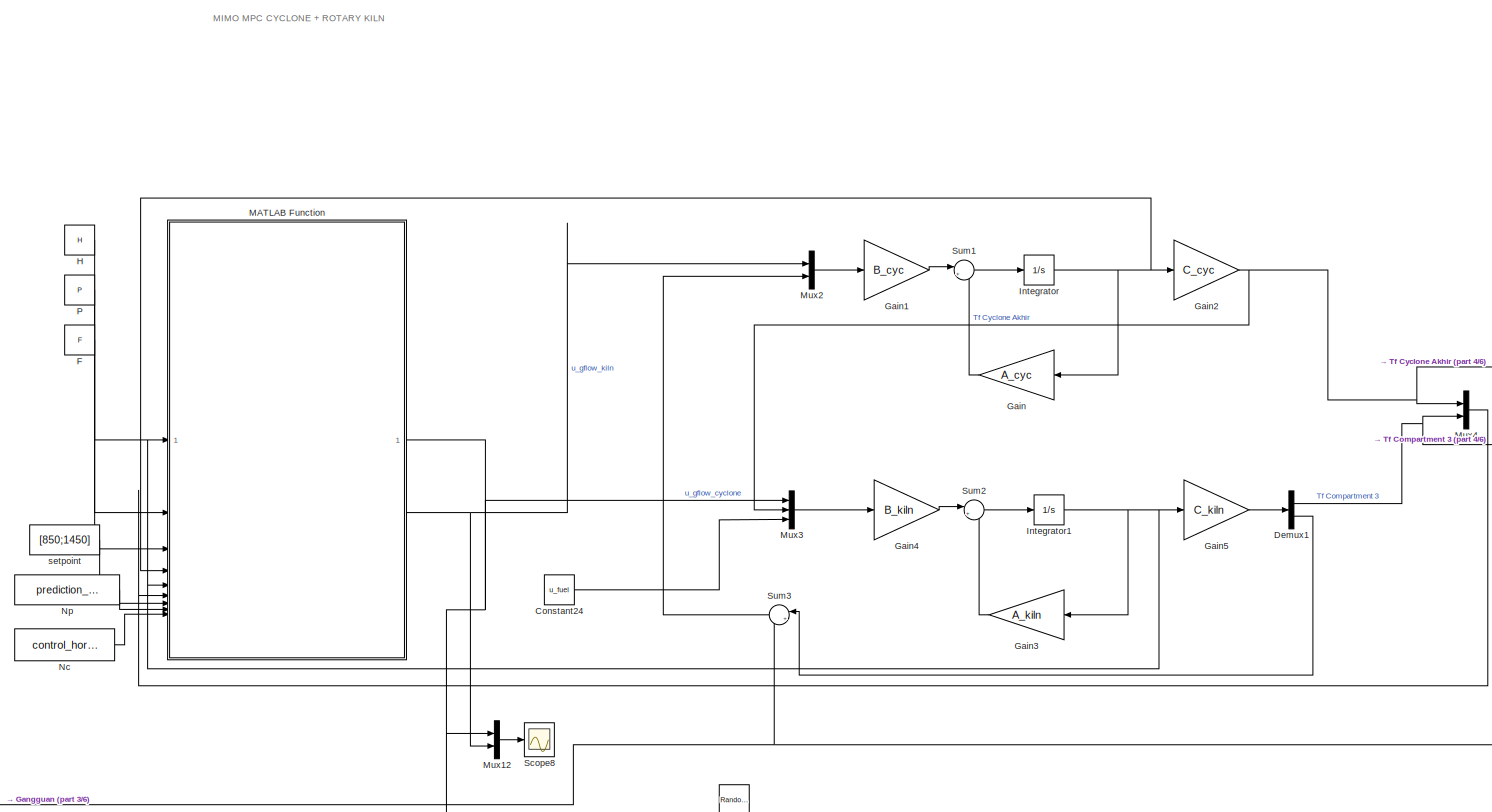
[diagram: root canvas - part 1/6, top right region]
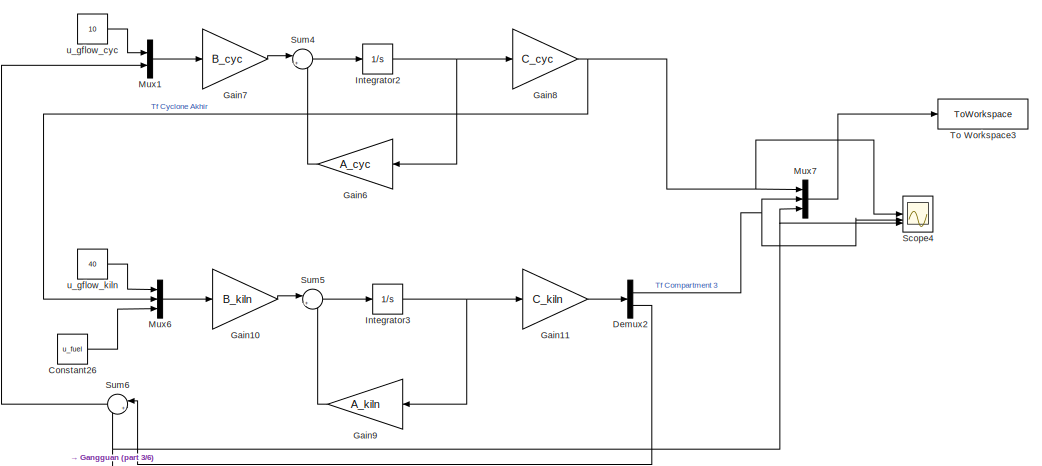
[diagram: root canvas - part 2/6, top left region]
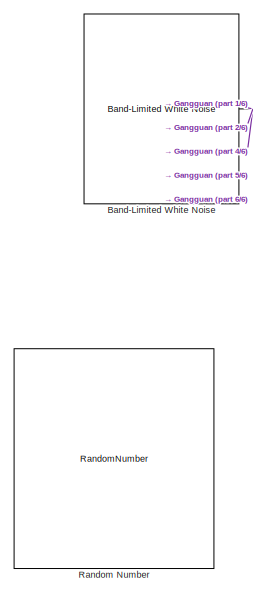
[diagram: root canvas - part 3/6, middle left region]
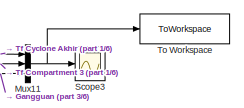
[diagram: root canvas - part 4/6, top right region]
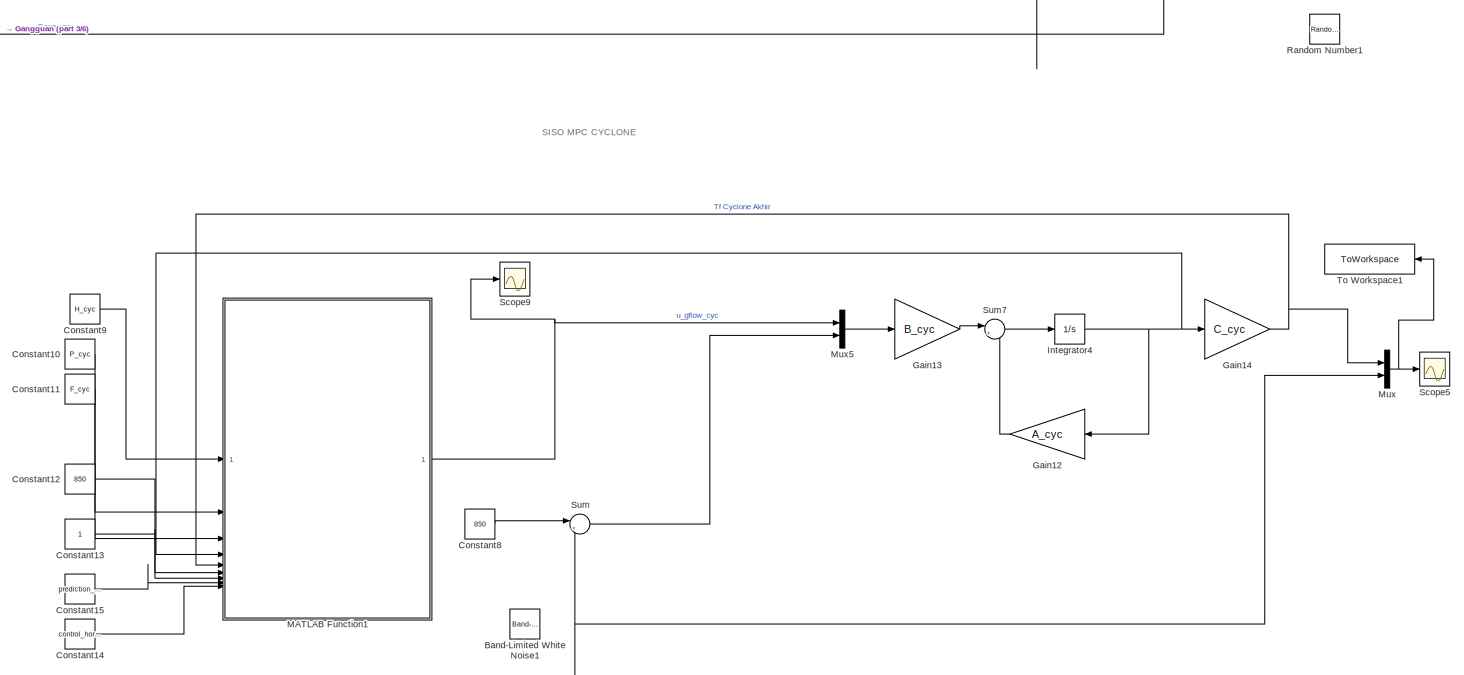
[diagram: root canvas - part 5/6, bottom center region]
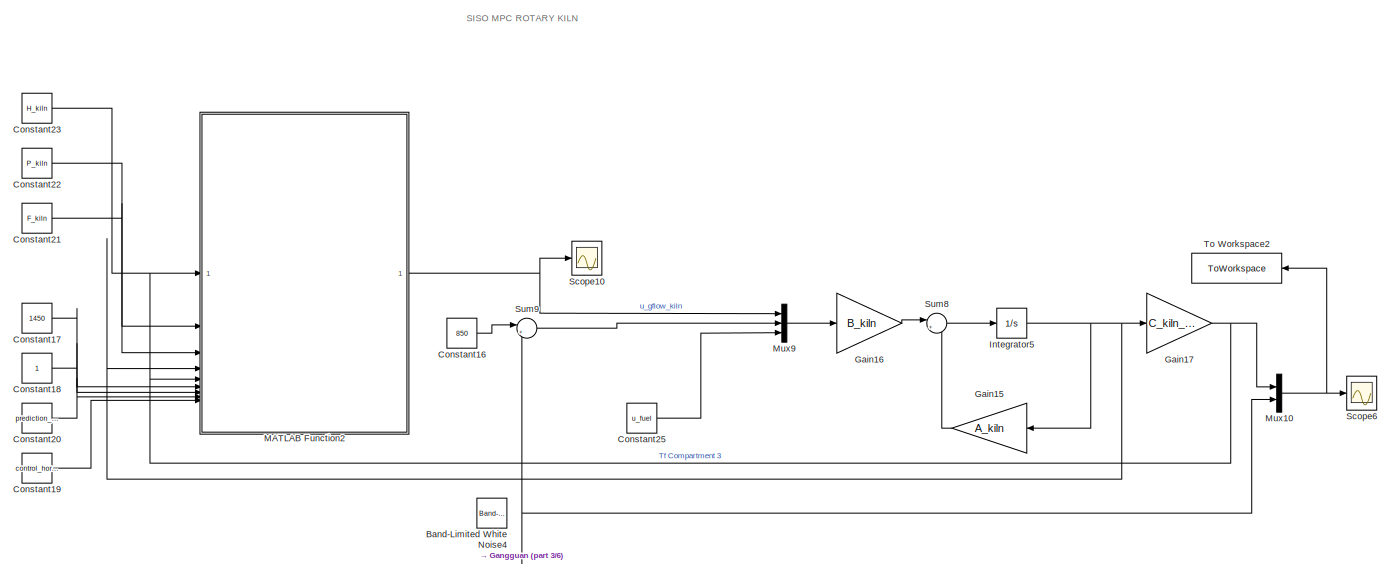
[diagram: root canvas - part 6/6, bottom right region]
MODEL slx_e0a44aeaa0a1
KIND model
CONFIG AbsTol = auto
CONFIG EnableMultiTasking = off
CONFIG FixedStep = auto
CONFIG MaxStep = auto
CONFIG MinStep = auto
CONFIG RelTol = 1e-3
CONFIG SampleTimeConstraint = Unconstrained
CONFIG SolverName = VariableStepAuto
CONFIG StartTime = 0.0
CONFIG StopTime = 1/24
BLOCK [Reference] Band-Limited White Noise  REF=simulink/Sources/Band-Limited
White Noise
  SourceBlock = simulink/Sources/Band-Limited\nWhite Noise
  SourceType = Band-Limited White Noise.
BLOCK [Reference] Band-Limited White Noise1  REF=simulink/Sources/Band-Limited
White Noise
  SourceBlock = simulink/Sources/Band-Limited\nWhite Noise
  SourceType = Band-Limited White Noise.
BLOCK [Reference] Band-Limited White Noise4  REF=simulink/Sources/Band-Limited
White Noise
  SourceBlock = simulink/Sources/Band-Limited\nWhite Noise
  SourceType = Band-Limited White Noise.
BLOCK [Constant] Constant10
  Value = P_cyc
BLOCK [Constant] Constant11
  Value = F_cyc
BLOCK [Constant] Constant12
  Value = 850
BLOCK [Constant] Constant13
BLOCK [Constant] Constant14
  Value = control_horizon
BLOCK [Constant] Constant15
  Value = prediction_horizon
BLOCK [Constant] Constant16
  Value = 850
BLOCK [Constant] Constant17
  Value = 1450
BLOCK [Constant] Constant18
BLOCK [Constant] Constant19
  Value = control_horizon
BLOCK [Constant] Constant20
  Value = prediction_horizon
BLOCK [Constant] Constant21
  Value = F_kiln
BLOCK [Constant] Constant22
  Value = P_kiln
BLOCK [Constant] Constant23
  Value = H_kiln
BLOCK [Constant] Constant24
  Value = u_fuel
BLOCK [Constant] Constant25
  Value = u_fuel
BLOCK [Constant] Constant26
  Value = u_fuel
BLOCK [Constant] Constant8
  Value = 850
BLOCK [Constant] Constant9
  Value = H_cyc
BLOCK [Demux] Demux1
  Outputs = 2
BLOCK [Demux] Demux2
  Outputs = 2
BLOCK [Constant] F
  Value = F
BLOCK [Gain] Gain
  Gain = A_cyc
  Multiplication = Matrix(K*u)
BLOCK [Gain] Gain1
  Gain = B_cyc
  Multiplication = Matrix(K*u)
BLOCK [Gain] Gain10
  Gain = B_kiln
  Multiplication = Matrix(K*u)
BLOCK [Gain] Gain11
  Gain = C_kiln
  Multiplication = Matrix(K*u)
BLOCK [Gain] Gain12
  Gain = A_cyc
  Multiplication = Matrix(K*u)
BLOCK [Gain] Gain13
  Gain = B_cyc
  Multiplication = Matrix(K*u)
BLOCK [Gain] Gain14
  Gain = C_cyc
  Multiplication = Matrix(K*u)
BLOCK [Gain] Gain15
  Gain = A_kiln
  Multiplication = Matrix(K*u)
BLOCK [Gain] Gain16
  Gain = B_kiln
  Multiplication = Matrix(K*u)
BLOCK [Gain] Gain17
  Gain = C_kiln_mpc
  Multiplication = Matrix(K*u)
BLOCK [Gain] Gain2
  Gain = C_cyc
  Multiplication = Matrix(K*u)
BLOCK [Gain] Gain3
  Gain = A_kiln
  Multiplication = Matrix(K*u)
BLOCK [Gain] Gain4
  Gain = B_kiln
  Multiplication = Matrix(K*u)
BLOCK [Gain] Gain5
  Gain = C_kiln
  Multiplication = Matrix(K*u)
BLOCK [Gain] Gain6
  Gain = A_cyc
  Multiplication = Matrix(K*u)
BLOCK [Gain] Gain7
  Gain = B_cyc
  Multiplication = Matrix(K*u)
BLOCK [Gain] Gain8
  Gain = C_cyc
  Multiplication = Matrix(K*u)
BLOCK [Gain] Gain9
  Gain = A_kiln
  Multiplication = Matrix(K*u)
BLOCK [Constant] H
  Value = H
BLOCK [Integrator] Integrator
BLOCK [Integrator] Integrator1
BLOCK [Integrator] Integrator2
BLOCK [Integrator] Integrator3
BLOCK [Integrator] Integrator4
BLOCK [Integrator] Integrator5
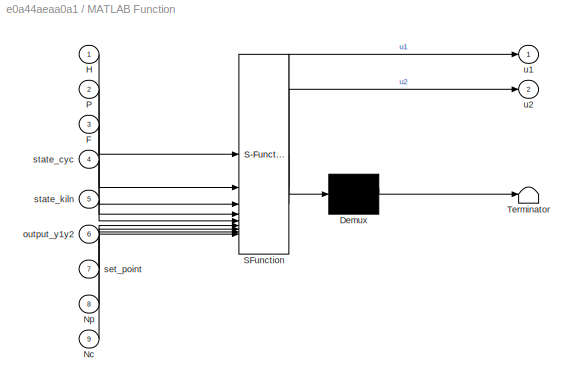
BLOCK [SubSystem] MATLAB Function
  ErrorFcn = Stateflow.Translate.translate
  LibrarySourceBlock = simulink/User-Defined\nFunctions/MATLAB Function
  PermitHierarchicalResolution = ExplicitOnly
  SFBlockType = MATLAB Function
  TreatAsAtomicUnit = on
BLOCK [Demux] MATLAB Function/ Demux 
  Outputs = 1
BLOCK [S-Function] MATLAB Function/ SFunction 
  EnableBusSupport = on
  FunctionName = sf_sfun
  PortCounts = [9 3]
  SFcnIsStateOwnerBlock = off
  SFunctionDeploymentMode = off
  Tag = Stateflow S-Function 2
BLOCK [Terminator] MATLAB Function/ Terminator 
BLOCK [Inport] MATLAB Function/F
  Port = 3
BLOCK [Inport] MATLAB Function/H
BLOCK [Inport] MATLAB Function/Nc
  Port = 9
BLOCK [Inport] MATLAB Function/Np
  Port = 8
BLOCK [Inport] MATLAB Function/P
  Port = 2
BLOCK [Inport] MATLAB Function/output_y1y2
  Port = 6
BLOCK [Inport] MATLAB Function/set_point
  Port = 7
BLOCK [Inport] MATLAB Function/state_cyc
  Port = 4
BLOCK [Inport] MATLAB Function/state_kiln
  Port = 5
BLOCK [Outport] MATLAB Function/u1
BLOCK [Outport] MATLAB Function/u2
  Port = 2
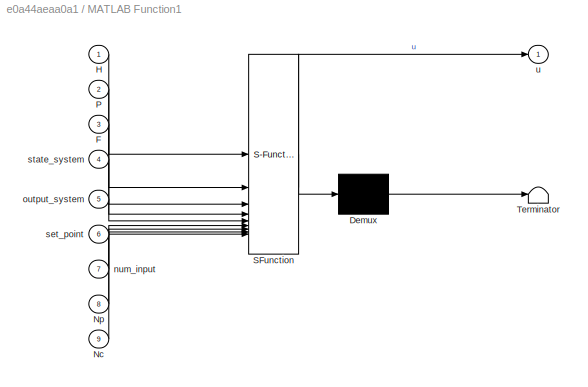
BLOCK [SubSystem] MATLAB Function1
  ErrorFcn = Stateflow.Translate.translate
  LibrarySourceBlock = simulink/User-Defined\nFunctions/MATLAB Function
  PermitHierarchicalResolution = ExplicitOnly
  SFBlockType = MATLAB Function
  TreatAsAtomicUnit = on
BLOCK [Demux] MATLAB Function1/ Demux 
  Outputs = 1
BLOCK [S-Function] MATLAB Function1/ SFunction 
  EnableBusSupport = on
  FunctionName = sf_sfun
  PortCounts = [9 2]
  SFcnIsStateOwnerBlock = off
  SFunctionDeploymentMode = off
  Tag = Stateflow S-Function 1
BLOCK [Terminator] MATLAB Function1/ Terminator 
BLOCK [Inport] MATLAB Function1/F
  Port = 3
BLOCK [Inport] MATLAB Function1/H
BLOCK [Inport] MATLAB Function1/Nc
  Port = 9
BLOCK [Inport] MATLAB Function1/Np
  Port = 8
BLOCK [Inport] MATLAB Function1/P
  Port = 2
BLOCK [Inport] MATLAB Function1/num_input
  Port = 7
BLOCK [Inport] MATLAB Function1/output_system
  Port = 5
BLOCK [Inport] MATLAB Function1/set_point
  Port = 6
BLOCK [Inport] MATLAB Function1/state_system
  Port = 4
BLOCK [Outport] MATLAB Function1/u
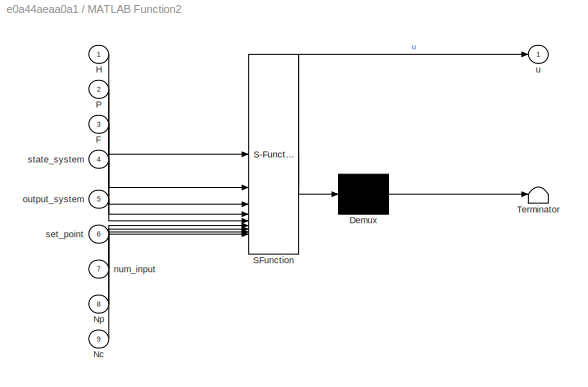
BLOCK [SubSystem] MATLAB Function2
  ErrorFcn = Stateflow.Translate.translate
  LibrarySourceBlock = simulink/User-Defined\nFunctions/MATLAB Function
  PermitHierarchicalResolution = ExplicitOnly
  SFBlockType = MATLAB Function
  TreatAsAtomicUnit = on
BLOCK [Demux] MATLAB Function2/ Demux 
  Outputs = 1
BLOCK [S-Function] MATLAB Function2/ SFunction 
  EnableBusSupport = on
  FunctionName = sf_sfun
  PortCounts = [9 2]
  SFcnIsStateOwnerBlock = off
  SFunctionDeploymentMode = off
  Tag = Stateflow S-Function 3
BLOCK [Terminator] MATLAB Function2/ Terminator 
BLOCK [Inport] MATLAB Function2/F
  Port = 3
BLOCK [Inport] MATLAB Function2/H
BLOCK [Inport] MATLAB Function2/Nc
  Port = 9
BLOCK [Inport] MATLAB Function2/Np
  Port = 8
BLOCK [Inport] MATLAB Function2/P
  Port = 2
BLOCK [Inport] MATLAB Function2/num_input
  Port = 7
BLOCK [Inport] MATLAB Function2/output_system
  Port = 5
BLOCK [Inport] MATLAB Function2/set_point
  Port = 6
BLOCK [Inport] MATLAB Function2/state_system
  Port = 4
BLOCK [Outport] MATLAB Function2/u
BLOCK [Mux] Mux
  DisplayOption = bar
  Inputs = 2
BLOCK [Mux] Mux1
  DisplayOption = bar
  Inputs = 2
BLOCK [Mux] Mux10
  DisplayOption = bar
  Inputs = 2
BLOCK [Mux] Mux11
  DisplayOption = bar
  Inputs = 3
BLOCK [Mux] Mux12
  DisplayOption = bar
  Inputs = 2
BLOCK [Mux] Mux2
  DisplayOption = bar
  Inputs = 2
BLOCK [Mux] Mux3
  DisplayOption = bar
  Inputs = 3
BLOCK [Mux] Mux4
  DisplayOption = bar
  Inputs = 2
BLOCK [Mux] Mux5
  DisplayOption = bar
  Inputs = 2
BLOCK [Mux] Mux6
  DisplayOption = bar
  Inputs = 3
BLOCK [Mux] Mux7
  DisplayOption = bar
  Inputs = 3
BLOCK [Mux] Mux9
  DisplayOption = bar
  Inputs = 3
BLOCK [Constant] Nc
  Value = control_horizon
BLOCK [Constant] Np
  Value = prediction_horizon
BLOCK [Constant] P
  Value = P
BLOCK [RandomNumber] Random Number
  SampleTime = 0.001
  Variance = 10000
BLOCK [RandomNumber] Random Number1
  SampleTime = 0.001
  Variance = 500
BLOCK [Scope] Scope10
  Floating = off
  NumInputPorts = 1
  ScopeSpecificationString = Simulink.scopes.TimeScopeBlockCfg('CurrentConfiguration', extmgr.ConfigurationSet(extmgr.Configuration('Core','General UI',true,'FigureColor',[1 1 1]),extmgr.Configuration('Core','Source UI',true),extmgr.Configuration('Sources','WiredSimulink',true,'DataLoggingVariableName','ScopeData4'),extmgr.Configuration('Visuals','Time Domain',true,'SerializedDisplays',{struct('MinYLimReal','-4911.78672','Max...<+1842ch>
BLOCK [Scope] Scope3
  Floating = off
  NumInputPorts = 1
  ScopeSpecificationString = Simulink.scopes.TimeScopeBlockCfg('CurrentConfiguration', extmgr.ConfigurationSet(extmgr.Configuration('Core','General UI',true,'FigureColor',[1 1 1]),extmgr.Configuration('Core','Source UI',true),extmgr.Configuration('Sources','WiredSimulink',true,'DataLoggingVariableName','ScopeData1'),extmgr.Configuration('Visuals','Time Domain',true,'SerializedDisplays',{struct('MinYLimReal','-2034.29056','Max...<+1880ch>
BLOCK [Scope] Scope4
  Floating = off
  NumInputPorts = 3
  ScopeSpecificationString = Simulink.scopes.TimeScopeBlockCfg('CurrentConfiguration', extmgr.ConfigurationSet(extmgr.Configuration('Core','General UI',true,'FigureColor',[1 1 1]),extmgr.Configuration('Core','Source UI',true),extmgr.Configuration('Sources','WiredSimulink',true,'DataLoggingVariableName','ScopeData2'),extmgr.Configuration('Visuals','Time Domain',true,'SerializedDisplays',{struct('MinYLimReal','-2876.92131','Max...<+1878ch>
BLOCK [Scope] Scope5
  Floating = off
  NumInputPorts = 1
  ScopeSpecificationString = Simulink.scopes.TimeScopeBlockCfg('CurrentConfiguration', extmgr.ConfigurationSet(extmgr.Configuration('Core','General UI',true,'FigureColor',[1 1 1]),extmgr.Configuration('Core','Source UI',true),extmgr.Configuration('Sources','WiredSimulink',true,'DataLoggingVariableName','ScopeData1'),extmgr.Configuration('Visuals','Time Domain',true,'SerializedDisplays',{struct('MinYLimReal','0.00000','MaxYLim...<+1850ch>
BLOCK [Scope] Scope6
  Floating = off
  NumInputPorts = 1
  ScopeSpecificationString = Simulink.scopes.TimeScopeBlockCfg('CurrentConfiguration', extmgr.ConfigurationSet(extmgr.Configuration('Core','General UI',true,'FigureColor',[1 1 1]),extmgr.Configuration('Core','Source UI',true),extmgr.Configuration('Sources','WiredSimulink',true,'DataLoggingVariableName','ScopeData2'),extmgr.Configuration('Visuals','Time Domain',true,'SerializedDisplays',{struct('MinYLimReal','-172.70281','MaxY...<+1829ch>
BLOCK [Scope] Scope8
  Floating = off
  NumInputPorts = 1
  ScopeSpecificationString = Simulink.scopes.TimeScopeBlockCfg('CurrentConfiguration', extmgr.ConfigurationSet(extmgr.Configuration('Core','General UI',true,'FigureColor',[1 1 1]),extmgr.Configuration('Core','Source UI',true),extmgr.Configuration('Sources','WiredSimulink',true,'DataLoggingVariableName','ScopeData2'),extmgr.Configuration('Visuals','Time Domain',true,'SerializedDisplays',{struct('MinYLimReal','-1941.06374','Max...<+1838ch>
BLOCK [Scope] Scope9
  Floating = off
  NumInputPorts = 1
  ScopeSpecificationString = Simulink.scopes.TimeScopeBlockCfg('CurrentConfiguration', extmgr.ConfigurationSet(extmgr.Configuration('Core','General UI',true,'FigureColor',[1 1 1]),extmgr.Configuration('Core','Source UI',true),extmgr.Configuration('Sources','WiredSimulink',true,'DataLoggingVariableName','ScopeData3'),extmgr.Configuration('Visuals','Time Domain',true,'SerializedDisplays',{struct('MinYLimReal','-2504.50148','Max...<+1842ch>
BLOCK [Sum] Sum
  Inputs = |++
BLOCK [Sum] Sum1
  Inputs = |++
BLOCK [Sum] Sum2
  Inputs = |++
BLOCK [Sum] Sum3
  Inputs = |++
BLOCK [Sum] Sum4
  Inputs = |++
BLOCK [Sum] Sum5
  Inputs = |++
BLOCK [Sum] Sum6
  Inputs = |++
BLOCK [Sum] Sum7
  Inputs = |++
BLOCK [Sum] Sum8
  Inputs = |++
BLOCK [Sum] Sum9
  Inputs = |++
BLOCK [ToWorkspace] To Workspace
  FixptAsFi = on
  MaxDataPoints = inf
  SampleTime = -1
  SaveFormat = Timeseries
  VariableName = state
BLOCK [ToWorkspace] To Workspace1
  FixptAsFi = on
  MaxDataPoints = inf
  SampleTime = -1
  SaveFormat = Timeseries
  VariableName = cyclone
BLOCK [ToWorkspace] To Workspace2
  FixptAsFi = on
  MaxDataPoints = inf
  SampleTime = -1
  SaveFormat = Timeseries
  VariableName = rotarykiln
BLOCK [ToWorkspace] To Workspace3
  FixptAsFi = on
  MaxDataPoints = inf
  SampleTime = -1
  SaveFormat = Timeseries
  VariableName = simulation
BLOCK [Constant] setpoint
  Value = [850;1450]
BLOCK [Constant] u_gflow_cyc
  Value = 10
BLOCK [Constant] u_gflow_kiln
  Value = 40
ANNOTATION (root): SISO MPC CYCLONE
ANNOTATION (root): SISO MPC ROTARY KILN
ANNOTATION (root): MIMO MPC CYCLONE + ROTARY KILN
NET Band-Limited White Noise:1 -> Mux10:2, Mux11:3, Mux7:3, Mux:2, Scope4:3, Sum3:2, Sum6:2, Sum9:2, Sum:2
LINE Constant10:1 -> MATLAB Function1:2
LINE Constant11:1 -> MATLAB Function1:3
LINE Constant12:1 -> MATLAB Function1:6
LINE Constant13:1 -> MATLAB Function1:7
LINE Constant14:1 -> MATLAB Function1:9
LINE Constant15:1 -> MATLAB Function1:8
LINE Constant16:1 -> Sum9:1
LINE Constant17:1 -> MATLAB Function2:6
LINE Constant18:1 -> MATLAB Function2:7
LINE Constant19:1 -> MATLAB Function2:9
LINE Constant20:1 -> MATLAB Function2:8
LINE Constant21:1 -> MATLAB Function2:3
LINE Constant22:1 -> MATLAB Function2:2
LINE Constant23:1 -> MATLAB Function2:1
LINE Constant24:1 -> Mux3:3
LINE Constant25:1 -> Mux9:3
LINE Constant26:1 -> Mux6:3
LINE Constant8:1 -> Sum:1
LINE Constant9:1 -> MATLAB Function1:1
NET Demux1:1 -> Mux11:2, Mux4:2
LINE Demux1:2 -> Sum3:1
NET Demux2:1 -> Mux7:2, Scope4:2
LINE Demux2:2 -> Sum6:1
LINE F:1 -> MATLAB Function:3
LINE Gain10:1 -> Sum5:1
LINE Gain11:1 -> Demux2:1
LINE Gain12:1 -> Sum7:2
LINE Gain13:1 -> Sum7:1
NET Gain14:1 -> MATLAB Function1:5, Mux:1
LINE Gain15:1 -> Sum8:2
LINE Gain16:1 -> Sum8:1
NET Gain17:1 -> MATLAB Function2:5, Mux10:1
LINE Gain1:1 -> Sum1:1
NET Gain2:1 -> Mux11:1, Mux3:2, Mux4:1
LINE Gain3:1 -> Sum2:2
LINE Gain4:1 -> Sum2:1
LINE Gain5:1 -> Demux1:1
LINE Gain6:1 -> Sum4:2
LINE Gain7:1 -> Sum4:1
NET Gain8:1 -> Mux6:2, Mux7:1, Scope4:1
LINE Gain9:1 -> Sum5:2
LINE Gain:1 -> Sum1:2
LINE H:1 -> MATLAB Function:1
NET Integrator1:1 -> Gain3:1, Gain5:1, MATLAB Function:5
NET Integrator2:1 -> Gain6:1, Gain8:1
NET Integrator3:1 -> Gain11:1, Gain9:1
NET Integrator4:1 -> Gain12:1, Gain14:1, MATLAB Function1:4
NET Integrator5:1 -> Gain15:1, Gain17:1, MATLAB Function2:4
NET Integrator:1 -> Gain2:1, Gain:1, MATLAB Function:4
NET MATLAB Function1:1 -> Mux5:1, Scope9:1
NET MATLAB Function2:1 -> Mux9:1, Scope10:1
NET MATLAB Function:1 -> Mux12:1, Mux3:1
NET MATLAB Function:2 -> Mux12:2, Mux2:1
NET Mux10:1 -> Scope6:1, To Workspace2:1
NET Mux11:1 -> Scope3:1, To Workspace:1
LINE Mux12:1 -> Scope8:1
LINE Mux1:1 -> Gain7:1
LINE Mux2:1 -> Gain1:1
LINE Mux3:1 -> Gain4:1
LINE Mux4:1 -> MATLAB Function:6
LINE Mux5:1 -> Gain13:1
LINE Mux6:1 -> Gain10:1
LINE Mux7:1 -> To Workspace3:1
LINE Mux9:1 -> Gain16:1
NET Mux:1 -> Scope5:1, To Workspace1:1
LINE Nc:1 -> MATLAB Function:9
LINE Np:1 -> MATLAB Function:8
LINE P:1 -> MATLAB Function:2
LINE Sum1:1 -> Integrator:1
LINE Sum2:1 -> Integrator1:1
LINE Sum3:1 -> Mux2:2
LINE Sum4:1 -> Integrator2:1
LINE Sum5:1 -> Integrator3:1
LINE Sum6:1 -> Mux1:2
LINE Sum7:1 -> Integrator4:1
LINE Sum8:1 -> Integrator5:1
LINE Sum9:1 -> Mux9:2
LINE Sum:1 -> Mux5:2
LINE setpoint:1 -> MATLAB Function:7
LINE u_gflow_cyc:1 -> Mux1:1
LINE u_gflow_kiln:1 -> Mux6:1
note: NET lines group one-source signal fan-out (src -> all destinations, sorted); 1:1 wires keep LINE
CHART MATLAB Function1 states=1 transitions=1
  STATE_LABEL 'eML_blk_kernel()'
  STATE_LABEL "SCRIPT:\nfunction u  = custom_MPC(H, P, F, state_system, output_system, set_point, num_input, Np, Nc)\n\npersistent states\nif isempty(states)\n   states=[zeros(size(state_system,1),1)];\nelse\n   states=[states, state_system];\nend\n\nstates = [states, state_system];\nRs = repmat(set_point, Np, 1);\nxk = [states(:,end) - states(:,end-1);output_system];\n\nf = -P'*(Rs - F*(xk));\noptions = optimoptions('quadprog...<+257ch>"
CHART MATLAB Function states=1 transitions=1
  STATE_LABEL 'eML_blk_kernel()'
  STATE_LABEL "SCRIPT:\nfunction [u1, u2] = custom_MPC(H, P, F, state_cyc, state_kiln, output_y1y2, set_point, Np, Nc)\ncurrent_state = [state_cyc ; state_kiln];\n\npersistent states\nif isempty(states)\n   states=[zeros(16,1)];\nelse\n   states=[states, current_state];\nend\n\nstates = [states, current_state];\nRs = repmat(set_point, Np, 1);\nxk = [states(:,end) - states(:,end-1);output_y1y2];\n\nf = -P'*(Rs - F*(xk));\noption...<+710ch>"
CHART MATLAB Function2 states=1 transitions=1
  STATE_LABEL 'eML_blk_kernel()'
  STATE_LABEL "SCRIPT:\nfunction u  = custom_MPC(H, P, F, state_system, output_system, set_point, num_input, Np, Nc)\n\npersistent states\nif isempty(states)\n   states=[zeros(size(state_system,1),1)];\nelse\n   states=[states, state_system];\nend\n\nstates = [states, state_system];\nRs = repmat(set_point, Np, 1);\nxk = [states(:,end) - states(:,end-1);output_system];\n\nf = -P'*(Rs - F*(xk));\noptions = optimoptions('quadprog...<+257ch>"
CHART  states=0 transitions=0
CHART  states=0 transitions=0
CHART  states=0 transitions=0
